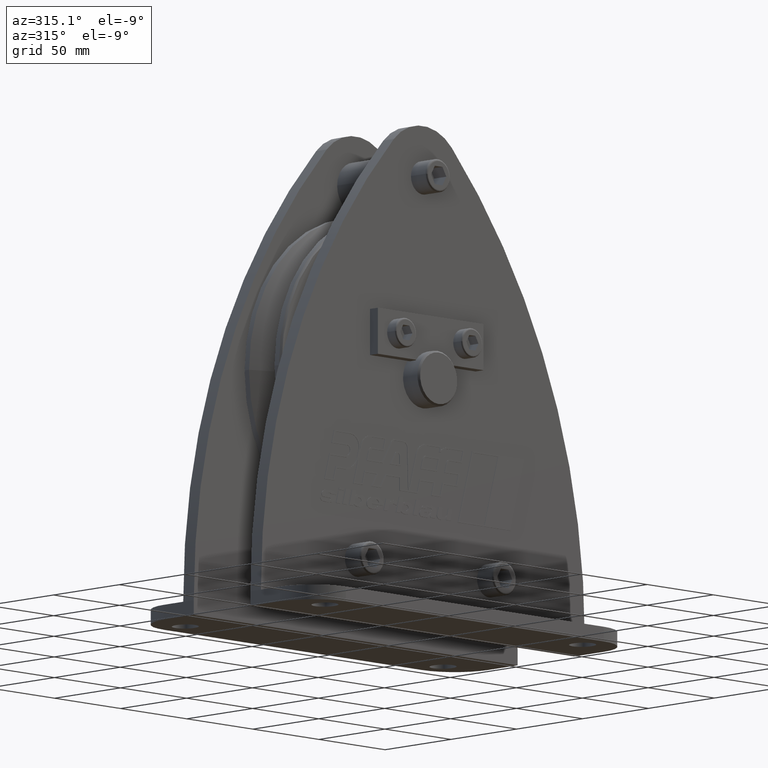
[diagram: clean part render]
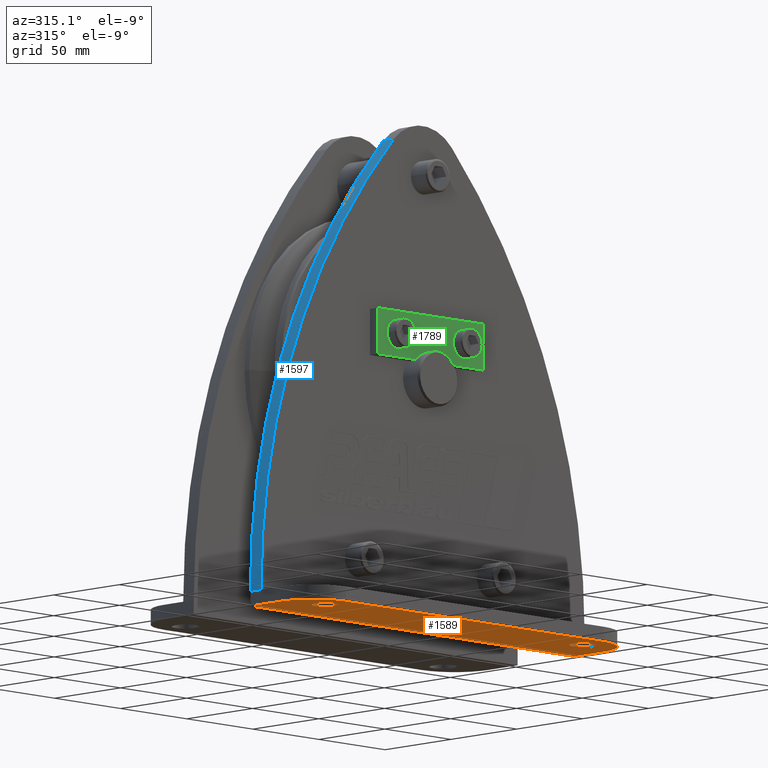
[diagram: same view with three faces highlighted in distinct colors, each labeled with its STEP entity id]
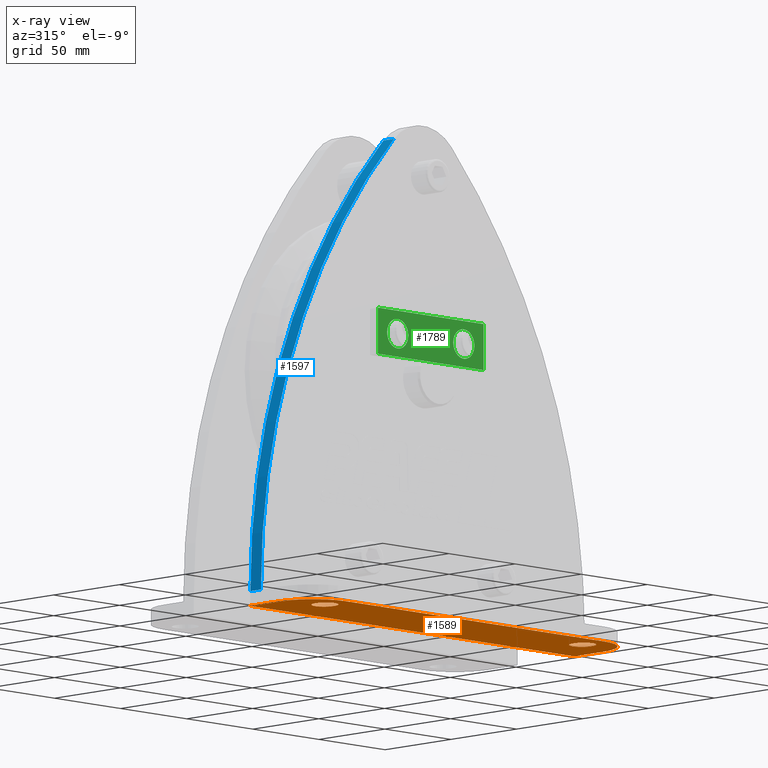
[diagram: x-ray of the same camera — body ghosted, the three highlighted faces saturated]
A machine part, auxiliary view with three faces highlighted in distinct colors.
The next image is the same camera in x-ray (body ghosted, the three faces saturated) — at least one of them is partly hidden behind the body in this view.
Their STEP definitions:

[orange] entity #1589 — the highlighted planar face has unit normal (0, 0, -1).
#1589=ADVANCED_FACE('',(#3434,#3435,#3436),#3437,.T.);
#3434=FACE_BOUND('',#5520,.T.);
#3435=FACE_BOUND('',#5521,.T.);
#3436=FACE_OUTER_BOUND('',#5522,.T.);
#3437=PLANE('',#5523);
#5520=EDGE_LOOP('',(#10522,#10523,#10524,#10525));
#5521=EDGE_LOOP('',(#10526,#10527,#10528,#10529));
#5522=EDGE_LOOP('',(#10530,#10531,#10532,#10533,#10534,#10535,#10536));
#5523=AXIS2_PLACEMENT_3D('',#10537,#10538,#10539);
#10522=ORIENTED_EDGE('',*,*,#14236,.T.);
#10523=ORIENTED_EDGE('',*,*,#14237,.T.);
#10524=ORIENTED_EDGE('',*,*,#14238,.T.);
#10525=ORIENTED_EDGE('',*,*,#14239,.T.);
#10526=ORIENTED_EDGE('',*,*,#14240,.T.);
#10527=ORIENTED_EDGE('',*,*,#14241,.T.);
#10528=ORIENTED_EDGE('',*,*,#14242,.T.);
#10529=ORIENTED_EDGE('',*,*,#14243,.T.);
#10530=ORIENTED_EDGE('',*,*,#14244,.T.);
#10531=ORIENTED_EDGE('',*,*,#14245,.T.);
#10532=ORIENTED_EDGE('',*,*,#14246,.F.);
#10533=ORIENTED_EDGE('',*,*,#14247,.T.);
#10534=ORIENTED_EDGE('',*,*,#14248,.F.);
#10535=ORIENTED_EDGE('',*,*,#14249,.F.);
#10536=ORIENTED_EDGE('',*,*,#14229,.T.);
#10537=CARTESIAN_POINT('',(0.0,-21.5,-135.0));
#10538=DIRECTION('',(0.0,0.0,-1.0));
#10539=DIRECTION('',(1.0,0.0,0.0));
#14229=EDGE_CURVE('',#17651,#17652,#17653,.T.);
#14236=EDGE_CURVE('',#17664,#17665,#17666,.T.);
#14237=EDGE_CURVE('',#17665,#17667,#17668,.T.);
#14238=EDGE_CURVE('',#17667,#17669,#17670,.T.);
#14239=EDGE_CURVE('',#17669,#17664,#17671,.T.);
#14240=EDGE_CURVE('',#17672,#17673,#17674,.T.);
#14241=EDGE_CURVE('',#17673,#17675,#17676,.T.);
#14242=EDGE_CURVE('',#17675,#17677,#17678,.T.);
#14243=EDGE_CURVE('',#17677,#17672,#17679,.T.);
#14244=EDGE_CURVE('',#17652,#17680,#17681,.T.);
#14245=EDGE_CURVE('',#17680,#17682,#17683,.T.);
#14246=EDGE_CURVE('',#17684,#17682,#17685,.T.);
#14247=EDGE_CURVE('',#17684,#17686,#17687,.T.);
#14248=EDGE_CURVE('',#17688,#17686,#17689,.T.);
#14249=EDGE_CURVE('',#17651,#17688,#17690,.T.);
#17651=VERTEX_POINT('',#25001);
#17652=VERTEX_POINT('',#25002);
#17653=LINE('',#25003,#25004);
#17664=VERTEX_POINT('',#25017);
#17665=VERTEX_POINT('',#25018);
#17666=CIRCLE('',#25019,6.75);
#17667=VERTEX_POINT('',#25020);
#17668=LINE('',#25021,#25022);
#17669=VERTEX_POINT('',#25023);
#17670=CIRCLE('',#25024,6.75);
#17671=LINE('',#25025,#25026);
#17672=VERTEX_POINT('',#25027);
#17673=VERTEX_POINT('',#25028);
#17674=CIRCLE('',#25029,6.75);
#17675=VERTEX_POINT('',#25030);
#17676=LINE('',#25031,#25032);
#17677=VERTEX_POINT('',#25033);
#17678=CIRCLE('',#25034,6.75);
#17679=LINE('',#25035,#25036);
#17680=VERTEX_POINT('',#25037);
#17681=LINE('',#25038,#25039);
#17682=VERTEX_POINT('',#25040);
#17683=LINE('',#25041,#25042);
#17684=VERTEX_POINT('',#25043);
#17685=CIRCLE('',#25044,24.9999999989);
#17686=VERTEX_POINT('',#25045);
#17687=LINE('',#25046,#25047);
#17688=VERTEX_POINT('',#25048);
#17689=CIRCLE('',#25049,24.9999999988999);
#17690=LINE('',#25050,#25051);
#25001=CARTESIAN_POINT('',(-122.5,-21.5,-135.0));
#25002=CARTESIAN_POINT('',(122.5,-21.5,-135.0));
#25003=CARTESIAN_POINT('',(-122.5,-21.5,-135.0));
#25004=VECTOR('',#29164,1.0);
#25017=CARTESIAN_POINT('',(90.75,-53.75,-135.0));
#25018=CARTESIAN_POINT('',(104.25,-53.75,-135.0));
#25019=AXIS2_PLACEMENT_3D('',#29176,#29177,#29178);
#25020=CARTESIAN_POINT('',(104.25,-52.25,-135.0));
#25021=CARTESIAN_POINT('',(104.25,-37.25,-135.0));
#25022=VECTOR('',#29179,1.0);
#25023=CARTESIAN_POINT('',(90.75,-52.25,-135.0));
#25024=AXIS2_PLACEMENT_3D('',#29180,#29181,#29182);
#25025=CARTESIAN_POINT('',(90.75,-37.25,-135.0));
#25026=VECTOR('',#29183,1.0);
#25027=CARTESIAN_POINT('',(-104.25,-53.75,-135.0));
#25028=CARTESIAN_POINT('',(-90.75,-53.75,-135.0));
#25029=AXIS2_PLACEMENT_3D('',#29184,#29185,#29186);
#25030=CARTESIAN_POINT('',(-90.75,-52.25,-135.0));
#25031=CARTESIAN_POINT('',(-90.75,-37.25,-135.0));
#25032=VECTOR('',#29187,1.0);
#25033=CARTESIAN_POINT('',(-104.25,-52.25,-135.0));
#25034=AXIS2_PLACEMENT_3D('',#29188,#29189,#29190);
#25035=CARTESIAN_POINT('',(-104.25,-37.25,-135.0));
#25036=VECTOR('',#29191,1.0);
#25037=CARTESIAN_POINT('',(122.5,-29.5,-135.0));
#25038=CARTESIAN_POINT('',(122.5,-21.5,-135.0));
#25039=VECTOR('',#29192,1.0);
#25040=CARTESIAN_POINT('',(122.5,-44.0,-135.0));
#25041=CARTESIAN_POINT('',(122.5,-29.5,-135.0));
#25042=VECTOR('',#29193,1.0);
#25043=CARTESIAN_POINT('',(97.4999999999655,-69.0,-135.0));
#25044=AXIS2_PLACEMENT_3D('',#29194,#29195,#29196);
#25045=CARTESIAN_POINT('',(-97.5,-69.0,-135.0));
#25046=CARTESIAN_POINT('',(97.5,-69.0,-135.0));
#25047=VECTOR('',#29197,1.0);
#25048=CARTESIAN_POINT('',(-122.5,-43.9999999999655,-135.0));
#25049=AXIS2_PLACEMENT_3D('',#29198,#29199,#29200);
#25050=CARTESIAN_POINT('',(-122.5,-21.5,-135.0));
#25051=VECTOR('',#29201,1.0);
#29164=DIRECTION('',(1.0,0.0,0.0));
#29176=CARTESIAN_POINT('',(97.5,-53.75,-135.0));
#29177=DIRECTION('',(0.0,-0.0,1.0));
#29178=DIRECTION('',(1.0,3.61850467285236E-016,0.0));
#29179=DIRECTION('',(0.0,1.0,0.0));
#29180=CARTESIAN_POINT('',(97.5,-52.25,-135.0));
#29181=DIRECTION('',(0.0,0.0,1.0));
#29182=DIRECTION('',(-1.0,-9.86864910777917E-017,0.0));
#29183=DIRECTION('',(-0.0,-1.0,-0.0));
#29184=CARTESIAN_POINT('',(-97.5,-53.75,-135.0));
#29185=DIRECTION('',(0.0,-0.0,1.0));
#29186=DIRECTION('',(1.0,3.61850467285236E-016,0.0));
#29187=DIRECTION('',(0.0,1.0,0.0));
#29188=CARTESIAN_POINT('',(-97.5,-52.25,-135.0));
#29189=DIRECTION('',(0.0,0.0,1.0));
#29190=DIRECTION('',(-1.0,-9.86864910777917E-017,0.0));
#29191=DIRECTION('',(-0.0,-1.0,-0.0));
#29192=DIRECTION('',(0.0,-1.0,0.0));
#29193=DIRECTION('',(0.0,-1.0,0.0));
#29194=CARTESIAN_POINT('',(97.5000000011,-44.0000000011,-135.0));
#29195=DIRECTION('',(0.0,0.0,1.0));
#29196=DIRECTION('',(-4.53792381469569E-011,-1.0,0.0));
#29197=DIRECTION('',(-1.0,0.0,0.0));
#29198=CARTESIAN_POINT('',(-97.5000000011001,-44.0000000011001,-135.0));
#29199=DIRECTION('',(0.0,0.0,1.0));
#29200=DIRECTION('',(-1.0,4.53815118837116E-011,0.0));
#29201=DIRECTION('',(0.0,-1.0,0.0));

[blue] entity #1597 — the highlighted cylindrical surface (partial cylindrical patch) has radius 375 mm, axis along (0, -1, 0).
#1597=ADVANCED_FACE('',(#3448),#3449,.T.);
#3448=FACE_OUTER_BOUND('',#5534,.T.);
#3449=CYLINDRICAL_SURFACE('',#5535,375.000346192699);
#5534=EDGE_LOOP('',(#10565,#10566,#10567,#10568));
#5535=AXIS2_PLACEMENT_3D('',#10569,#10570,#10571);
#10565=ORIENTED_EDGE('',*,*,#13165,.T.);
#10566=ORIENTED_EDGE('',*,*,#14256,.F.);
#10567=ORIENTED_EDGE('',*,*,#14231,.T.);
#10568=ORIENTED_EDGE('',*,*,#14258,.T.);
#10569=CARTESIAN_POINT('',(252.500298154599,-21.5,-126.810187808699));
#10570=DIRECTION('',(0.0,-1.0,0.0));
#10571=DIRECTION('',(-0.731884177391438,0.0,0.681429050513741));
#13165=EDGE_CURVE('',#16181,#16186,#16188,.T.);
#14231=EDGE_CURVE('',#17656,#17654,#17657,.T.);
#14256=EDGE_CURVE('',#17656,#16186,#17697,.T.);
#14258=EDGE_CURVE('',#17654,#16181,#17699,.T.);
#16181=VERTEX_POINT('',#22932);
#16186=VERTEX_POINT('',#22938);
#16188=CIRCLE('',#22940,375.000346192699);
#17654=VERTEX_POINT('',#25005);
#17656=VERTEX_POINT('',#25008);
#17657=CIRCLE('',#25009,375.000346192699);
#17697=LINE('',#25061,#25062);
#17699=LINE('',#25064,#25065);
#22932=CARTESIAN_POINT('',(-122.499999999917,-29.5,-126.999999999808));
#22938=CARTESIAN_POINT('',(-21.9565217399796,-29.5,128.725942039967));
#22940=AXIS2_PLACEMENT_3D('',#28076,#28077,#28078);
#25005=CARTESIAN_POINT('',(-122.499999999917,-21.5,-126.999999999808));
#25008=CARTESIAN_POINT('',(-21.9565217399796,-21.5,128.725942039967));
#25009=AXIS2_PLACEMENT_3D('',#29166,#29167,#29168);
#25061=CARTESIAN_POINT('',(-21.9565217399796,-21.5,128.725942039967));
#25062=VECTOR('',#29205,1.0);
#25064=CARTESIAN_POINT('',(-122.499999999917,-21.5,-126.999999999808));
#25065=VECTOR('',#29206,1.0);
#28076=CARTESIAN_POINT('',(252.500298154599,-29.5,-126.810187808699));
#28077=DIRECTION('',(0.0,1.0,-0.0));
#28078=DIRECTION('',(-0.731884177391438,0.0,0.681429050513741));
#29166=CARTESIAN_POINT('',(252.500298154599,-21.5,-126.810187808699));
#29167=DIRECTION('',(0.0,-1.0,0.0));
#29168=DIRECTION('',(-0.731884177391438,0.0,0.681429050513741));
#29205=DIRECTION('',(0.0,-1.0,0.0));
#29206=DIRECTION('',(0.0,-1.0,0.0));

[green] entity #1789 — the highlighted planar face has unit normal (-0, 1, 0).
#1789=ADVANCED_FACE('',(#3756,#3757,#3758),#3759,.F.);
#3756=FACE_BOUND('',#5842,.T.);
#3757=FACE_BOUND('',#5843,.T.);
#3758=FACE_OUTER_BOUND('',#5844,.T.);
#3759=PLANE('',#5845);
#5842=EDGE_LOOP('',(#11489,#11490));
#5843=EDGE_LOOP('',(#11491,#11492));
#5844=EDGE_LOOP('',(#11493,#11494,#11495,#11496));
#5845=AXIS2_PLACEMENT_3D('',#11497,#11498,#11499);
#11489=ORIENTED_EDGE('',*,*,#12858,.T.);
#11490=ORIENTED_EDGE('',*,*,#14050,.T.);
#11491=ORIENTED_EDGE('',*,*,#12808,.T.);
#11492=ORIENTED_EDGE('',*,*,#14103,.T.);
#11493=ORIENTED_EDGE('',*,*,#14464,.T.);
#11494=ORIENTED_EDGE('',*,*,#14473,.T.);
#11495=ORIENTED_EDGE('',*,*,#14470,.T.);
#11496=ORIENTED_EDGE('',*,*,#14467,.T.);
#11497=CARTESIAN_POINT('',(0.0,-35.5,22.0));
#11498=DIRECTION('',(-0.0,1.0,0.0));
#11499=DIRECTION('',(1.0,0.0,0.0));
#12808=EDGE_CURVE('',#15544,#15548,#15550,.T.);
#12858=EDGE_CURVE('',#15628,#15632,#15634,.T.);
#14050=EDGE_CURVE('',#15632,#15628,#17406,.T.);
#14103=EDGE_CURVE('',#15548,#15544,#17477,.T.);
#14464=EDGE_CURVE('',#17935,#17933,#17936,.T.);
#14467=EDGE_CURVE('',#17939,#17935,#17940,.T.);
#14470=EDGE_CURVE('',#17943,#17939,#17944,.T.);
#14473=EDGE_CURVE('',#17933,#17943,#17947,.T.);
#15544=VERTEX_POINT('',#21960);
#15548=VERTEX_POINT('',#21965);
#15550=CIRCLE('',#21968,8.0);
#15628=VERTEX_POINT('',#22205);
#15632=VERTEX_POINT('',#22210);
#15634=CIRCLE('',#22213,8.0);
#17406=CIRCLE('',#24627,8.0);
#17477=CIRCLE('',#24773,8.0);
#17933=VERTEX_POINT('',#26280);
#17935=VERTEX_POINT('',#26283);
#17936=LINE('',#26284,#26285);
#17939=VERTEX_POINT('',#26289);
#17940=LINE('',#26290,#26291);
#17943=VERTEX_POINT('',#26295);
#17944=LINE('',#26296,#26297);
#17947=LINE('',#26301,#26302);
#21960=CARTESIAN_POINT('',(33.0,-35.5,22.0));
#21965=CARTESIAN_POINT('',(17.0,-35.5,22.0));
#21968=AXIS2_PLACEMENT_3D('',#27512,#27513,#27514);
#22205=CARTESIAN_POINT('',(-17.0,-35.5,22.0));
#22210=CARTESIAN_POINT('',(-33.0,-35.5,22.0));
#22213=AXIS2_PLACEMENT_3D('',#27588,#27589,#27590);
#24627=AXIS2_PLACEMENT_3D('',#28939,#28940,#28941);
#24773=AXIS2_PLACEMENT_3D('',#28999,#29000,#29001);
#26280=CARTESIAN_POINT('',(40.0,-35.5,34.5));
#26283=CARTESIAN_POINT('',(40.0,-35.5,9.5));
#26284=CARTESIAN_POINT('',(40.0,-35.5,22.0));
#26285=VECTOR('',#29376,1.0);
#26289=CARTESIAN_POINT('',(-40.0,-35.5,9.5));
#26290=CARTESIAN_POINT('',(0.0,-35.5,9.5));
#26291=VECTOR('',#29378,1.0);
#26295=CARTESIAN_POINT('',(-40.0,-35.5,34.5));
#26296=CARTESIAN_POINT('',(-40.0,-35.5,22.0));
#26297=VECTOR('',#29380,1.0);
#26301=CARTESIAN_POINT('',(0.0,-35.5,34.5));
#26302=VECTOR('',#29382,1.0);
#27512=CARTESIAN_POINT('',(25.0,-35.5,22.0));
#27513=DIRECTION('',(-0.0,1.0,0.0));
#27514=DIRECTION('',(1.0,0.0,0.0));
#27588=CARTESIAN_POINT('',(-25.0,-35.5,22.0));
#27589=DIRECTION('',(-0.0,1.0,0.0));
#27590=DIRECTION('',(1.0,0.0,0.0));
#28939=CARTESIAN_POINT('',(-25.0,-35.5,22.0));
#28940=DIRECTION('',(-0.0,1.0,0.0));
#28941=DIRECTION('',(1.0,0.0,0.0));
#28999=CARTESIAN_POINT('',(25.0,-35.5,22.0));
#29000=DIRECTION('',(-0.0,1.0,0.0));
#29001=DIRECTION('',(1.0,0.0,0.0));
#29376=DIRECTION('',(0.0,0.0,1.0));
#29378=DIRECTION('',(1.0,0.0,0.0));
#29380=DIRECTION('',(0.0,0.0,-1.0));
#29382=DIRECTION('',(-1.0,0.0,0.0));